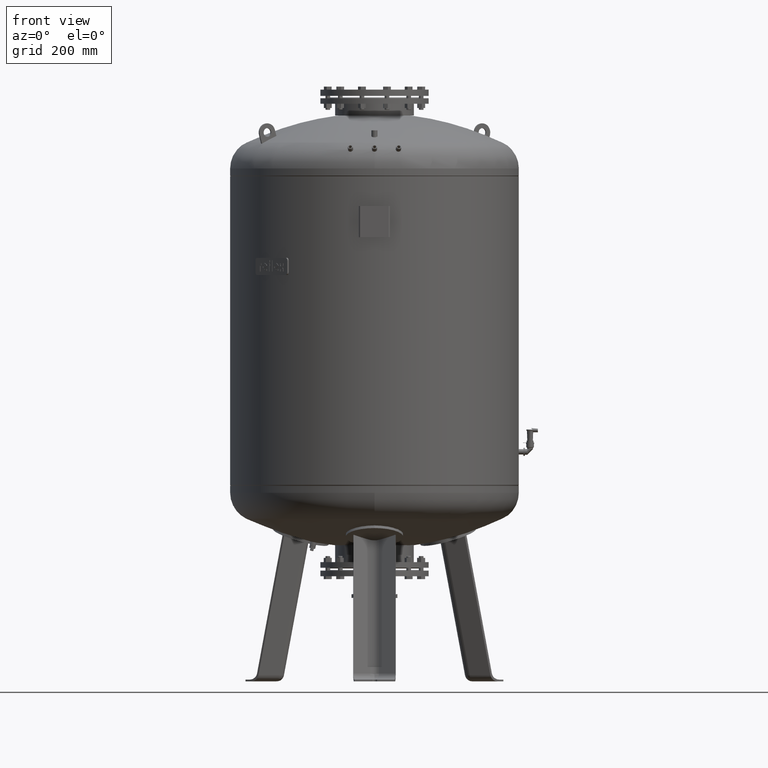
[diagram: clean part render]
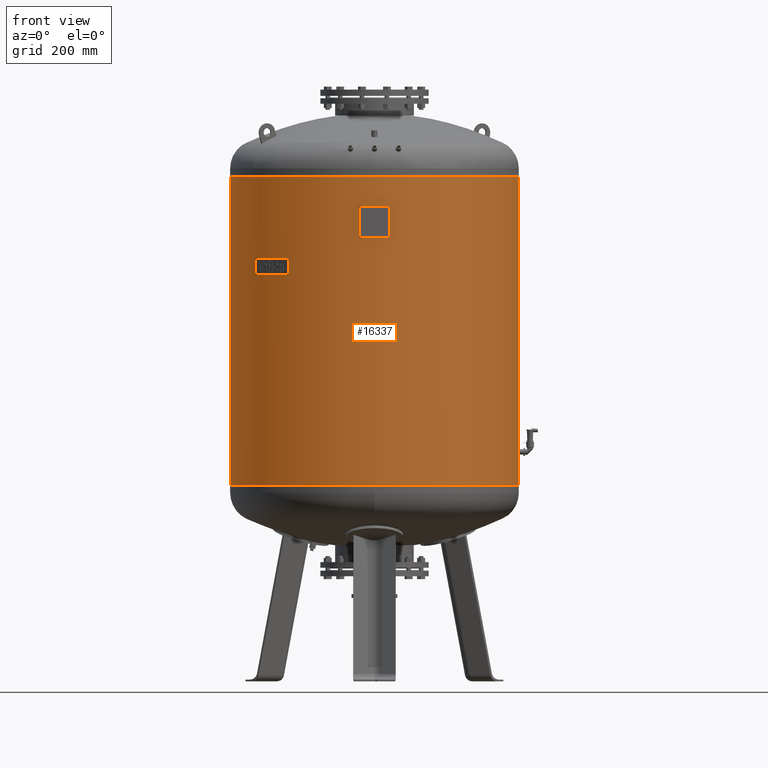
[diagram: same view with one face highlighted and labeled with its STEP entity id]
A machine part, front view. The second image highlights one B-rep face of the part: STEP entity #16337.
In plain terms, the highlighted cylindrical surface (partial cylindrical patch) has radius 500 mm, axis along (0, 0, 1).
Its self-contained STEP definition (entity closure, byte-faithful):
#16296=CARTESIAN_POINT('',(8.297411E-015,0.0,1482.250000000000000));
#16297=DIRECTION('',(3.104738E-017,0.0,1.0));
#16298=DIRECTION('',(1.0,0.0,0.0));
#16299=AXIS2_PLACEMENT_3D('',#16296,#16297,#16298);
#16300=CYLINDRICAL_SURFACE('',#16299,500.000000000000570);
#16301=CARTESIAN_POINT('',(500.000000000000570,0.0,1749.500000000000000));
#16302=VERTEX_POINT('',#16301);
#16303=CARTESIAN_POINT('',(499.999999999999890,0.0,680.500000000000000));
#16304=VERTEX_POINT('',#16303);
#16305=CARTESIAN_POINT('',(500.000000000000570,0.0,1749.500000000000000));
#16306=DIRECTION('',(0.0,0.0,-1.0));
#16307=VECTOR('',#16306,1069.0);
#16308=LINE('',#16305,#16307);
#16309=EDGE_CURVE('',#16302,#16304,#16308,.T.);
#16310=ORIENTED_EDGE('',*,*,#16309,.F.);
#16311=CARTESIAN_POINT('',(-500.000000000000570,-6.123032E-014,1749.500000000000000));
#16312=VERTEX_POINT('',#16311);
#16313=CARTESIAN_POINT('',(1.659482E-014,0.0,1749.500000000000000));
#16314=DIRECTION('',(0.0,0.0,1.0));
#16315=DIRECTION('',(1.0,0.0,0.0));
#16316=AXIS2_PLACEMENT_3D('',#16313,#16314,#16315);
#16317=CIRCLE('',#16316,500.000000000000570);
#16318=EDGE_CURVE('',#16312,#16302,#16317,.T.);
#16319=ORIENTED_EDGE('',*,*,#16318,.F.);
#16320=CARTESIAN_POINT('',(-499.999999999999890,-6.123032E-014,680.500000000000000));
#16321=VERTEX_POINT('',#16320);
#16322=CARTESIAN_POINT('',(-500.000000000000570,-6.123032E-014,1749.500000000000000));
#16323=DIRECTION('',(0.0,0.0,-1.0));
#16324=VECTOR('',#16323,1069.0);
#16325=LINE('',#16322,#16324);
#16326=EDGE_CURVE('',#16312,#16321,#16325,.T.);
#16327=ORIENTED_EDGE('',*,*,#16326,.T.);
#16328=CARTESIAN_POINT('',(-1.659482E-014,0.0,680.500000000000000));
#16329=DIRECTION('',(0.0,0.0,1.0));
#16330=DIRECTION('',(1.0,0.0,0.0));
#16331=AXIS2_PLACEMENT_3D('',#16328,#16329,#16330);
#16332=CIRCLE('',#16331,499.999999999999890);
#16333=EDGE_CURVE('',#16321,#16304,#16332,.T.);
#16334=ORIENTED_EDGE('',*,*,#16333,.T.);
#16335=EDGE_LOOP('',(#16310,#16319,#16327,#16334));
#16336=FACE_OUTER_BOUND('',#16335,.T.);
#16337=ADVANCED_FACE('',(#16336),#16300,.T.);